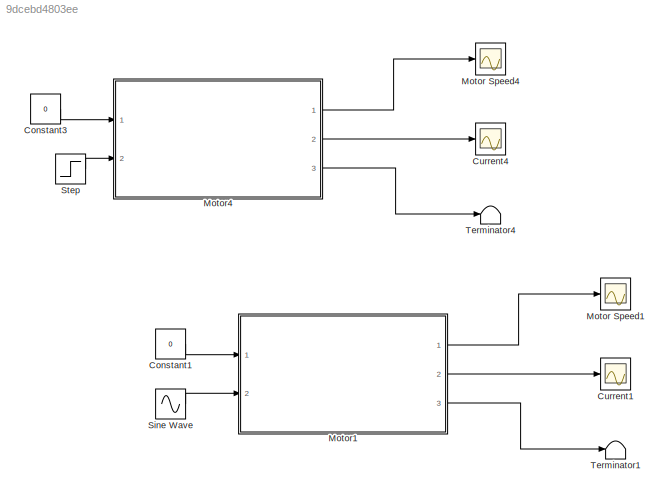
MODEL slx_9dcebd4803ee
KIND model
CONFIG AbsTol = auto
CONFIG EnableMultiTasking = off
CONFIG FixedStep = auto
CONFIG MaxStep = auto
CONFIG MinStep = auto
CONFIG PreLoadFcn = load('motor_params.mat')\n
CONFIG RelTol = 1e-3
CONFIG SampleTimeConstraint = Unconstrained
CONFIG Solver = ode45
CONFIG SolverName = ode45
CONFIG StartTime = 0.0
CONFIG StopTime = 10
BLOCK [Constant] Constant1
  Value = 0
BLOCK [Constant] Constant3
  Value = 0
BLOCK [Scope] Current1
  Floating = off
  NumInputPorts = 1
  Ports = [1]
  ScopeSpecificationString = Simulink.scopes.TimeScopeBlockCfg('CurrentConfiguration', extmgr.ConfigurationSet(extmgr.Configuration('Core','General UI',true),extmgr.Configuration('Core','Source UI',true),extmgr.Configuration('Sources','WiredSimulink',true,'DataLoggingVariableName','ScopeData2'),extmgr.Configuration('Visuals','Time Domain',true,'SerializedDisplays',{struct('MinYLimReal','-1.65128','MaxYLimReal','1.65046','YLab...<+1430ch>
BLOCK [Scope] Current4
  Floating = off
  NumInputPorts = 1
  Ports = [1]
  ScopeSpecificationString = Simulink.scopes.TimeScopeBlockCfg('CurrentConfiguration', extmgr.ConfigurationSet(extmgr.Configuration('Core','General UI',true),extmgr.Configuration('Core','Source UI',true),extmgr.Configuration('Sources','WiredSimulink',true,'DataLoggingVariableName','ScopeData1'),extmgr.Configuration('Visuals','Time Domain',true,'SerializedDisplays',{struct('MinYLimReal','-1.65128','MaxYLimReal','1.65046','YLab...<+1405ch>
BLOCK [Scope] Motor Speed1
  Floating = off
  NumInputPorts = 1
  Ports = [1]
  ScopeSpecificationString = Simulink.scopes.TimeScopeBlockCfg('CurrentConfiguration', extmgr.ConfigurationSet(extmgr.Configuration('Core','General UI',true),extmgr.Configuration('Core','Source UI',true),extmgr.Configuration('Sources','WiredSimulink',true,'DataLoggingVariableName','ScopeData3'),extmgr.Configuration('Visuals','Time Domain',true,'SerializedDisplays',{struct('MinYLimReal','-6.54507','MaxYLimReal','58.90566','YLa...<+1421ch>
BLOCK [Scope] Motor Speed4
  Floating = off
  NumInputPorts = 1
  Ports = [1]
  ScopeSpecificationString = Simulink.scopes.TimeScopeBlockCfg('CurrentConfiguration', extmgr.ConfigurationSet(extmgr.Configuration('Core','General UI',true),extmgr.Configuration('Core','Source UI',true),extmgr.Configuration('Sources','WiredSimulink',true),extmgr.Configuration('Visuals','Time Domain',true,'SerializedDisplays',{struct('MinYLimReal','-6.54507','MaxYLimReal','58.90566','YLabelReal','','MinYLimMag','0.00000','Max...<+1374ch>
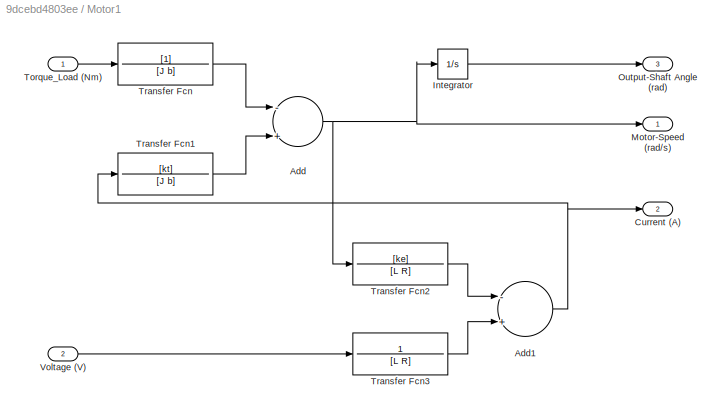
BLOCK [SubSystem] Motor1
  Ports = [2, 3]
  RequestExecContextInheritance = off
BLOCK [Sum] Motor1/Add
  InputSameDT = off
  Inputs = -+
  OutDataTypeStr = Inherit: Inherit via internal rule
  Ports = [2, 1]
  SaturateOnIntegerOverflow = off
BLOCK [Sum] Motor1/Add1
  InputSameDT = off
  Inputs = -+
  OutDataTypeStr = Inherit: Inherit via internal rule
  Ports = [2, 1]
  SaturateOnIntegerOverflow = off
BLOCK [Outport] Motor1/Current (A)
  IconDisplay = Port number
  Port = 2
  VectorParamsAs1DForOutWhenUnconnected = off
BLOCK [Integrator] Motor1/Integrator
  Ports = [1, 1]
BLOCK [Outport] Motor1/Motor-Speed (rad//s)
  IconDisplay = Port number
  VectorParamsAs1DForOutWhenUnconnected = off
BLOCK [Outport] Motor1/Output-Shaft Angle (rad)
  IconDisplay = Port number
  Port = 3
  VectorParamsAs1DForOutWhenUnconnected = off
BLOCK [Inport] Motor1/Torque_Load (Nm)
  IconDisplay = Port number
BLOCK [TransferFcn] Motor1/Transfer Fcn
  Denominator = [J b]
BLOCK [TransferFcn] Motor1/Transfer Fcn1
  Denominator = [J b]
  Numerator = [kt]
BLOCK [TransferFcn] Motor1/Transfer Fcn2
  Denominator = [L R]
  Numerator = [ke]
BLOCK [TransferFcn] Motor1/Transfer Fcn3
  Denominator = [L R]
  Numerator = 1
BLOCK [Inport] Motor1/Voltage (V)
  IconDisplay = Port number
  Port = 2
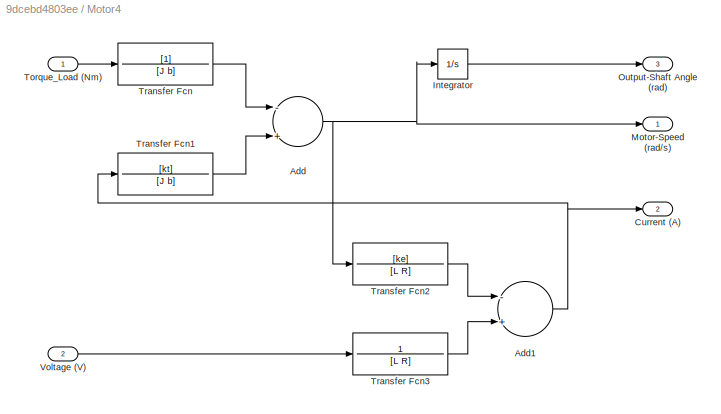
BLOCK [SubSystem] Motor4
  Ports = [2, 3]
  RequestExecContextInheritance = off
BLOCK [Sum] Motor4/Add
  InputSameDT = off
  Inputs = -+
  OutDataTypeStr = Inherit: Inherit via internal rule
  Ports = [2, 1]
  SaturateOnIntegerOverflow = off
BLOCK [Sum] Motor4/Add1
  InputSameDT = off
  Inputs = -+
  OutDataTypeStr = Inherit: Inherit via internal rule
  Ports = [2, 1]
  SaturateOnIntegerOverflow = off
BLOCK [Outport] Motor4/Current (A)
  IconDisplay = Port number
  Port = 2
  VectorParamsAs1DForOutWhenUnconnected = off
BLOCK [Integrator] Motor4/Integrator
  Ports = [1, 1]
BLOCK [Outport] Motor4/Motor-Speed (rad//s)
  IconDisplay = Port number
  VectorParamsAs1DForOutWhenUnconnected = off
BLOCK [Outport] Motor4/Output-Shaft Angle (rad)
  IconDisplay = Port number
  Port = 3
  VectorParamsAs1DForOutWhenUnconnected = off
BLOCK [Inport] Motor4/Torque_Load (Nm)
  IconDisplay = Port number
BLOCK [TransferFcn] Motor4/Transfer Fcn
  Denominator = [J b]
BLOCK [TransferFcn] Motor4/Transfer Fcn1
  Denominator = [J b]
  Numerator = [kt]
BLOCK [TransferFcn] Motor4/Transfer Fcn2
  Denominator = [L R]
  Numerator = [ke]
BLOCK [TransferFcn] Motor4/Transfer Fcn3
  Denominator = [L R]
  Numerator = 1
BLOCK [Inport] Motor4/Voltage (V)
  IconDisplay = Port number
  Port = 2
BLOCK [Sin] Sine Wave
  Amplitude = 6
  Ports = [0, 1]
  SampleTime = 1
BLOCK [Step] Step
  After = 12
  SampleTime = 10
BLOCK [Terminator] Terminator1
BLOCK [Terminator] Terminator4
LINE Constant1:1 -> Motor1:1
LINE Constant3:1 -> Motor4:1
NET Motor1/Add1:1 -> Motor1/Current (A):1, Motor1/Transfer Fcn1:1
NET Motor1/Add:1 -> Motor1/Integrator:1, Motor1/Motor-Speed (rad//s):1, Motor1/Transfer Fcn2:1
LINE Motor1/Integrator:1 -> Motor1/Output-Shaft Angle (rad):1
LINE Motor1/Torque_Load (Nm):1 -> Motor1/Transfer Fcn:1
LINE Motor1/Transfer Fcn1:1 -> Motor1/Add:2
LINE Motor1/Transfer Fcn2:1 -> Motor1/Add1:1
LINE Motor1/Transfer Fcn3:1 -> Motor1/Add1:2
LINE Motor1/Transfer Fcn:1 -> Motor1/Add:1
LINE Motor1/Voltage (V):1 -> Motor1/Transfer Fcn3:1
LINE Motor1:1 -> Motor Speed1:1
LINE Motor1:2 -> Current1:1
LINE Motor1:3 -> Terminator1:1
NET Motor4/Add1:1 -> Motor4/Current (A):1, Motor4/Transfer Fcn1:1
NET Motor4/Add:1 -> Motor4/Integrator:1, Motor4/Motor-Speed (rad//s):1, Motor4/Transfer Fcn2:1
LINE Motor4/Integrator:1 -> Motor4/Output-Shaft Angle (rad):1
LINE Motor4/Torque_Load (Nm):1 -> Motor4/Transfer Fcn:1
LINE Motor4/Transfer Fcn1:1 -> Motor4/Add:2
LINE Motor4/Transfer Fcn2:1 -> Motor4/Add1:1
LINE Motor4/Transfer Fcn3:1 -> Motor4/Add1:2
LINE Motor4/Transfer Fcn:1 -> Motor4/Add:1
LINE Motor4/Voltage (V):1 -> Motor4/Transfer Fcn3:1
LINE Motor4:1 -> Motor Speed4:1
LINE Motor4:2 -> Current4:1
LINE Motor4:3 -> Terminator4:1
LINE Sine Wave:1 -> Motor1:2
LINE Step:1 -> Motor4:2
note: NET lines group one-source signal fan-out (src -> all destinations, sorted); 1:1 wires keep LINE
